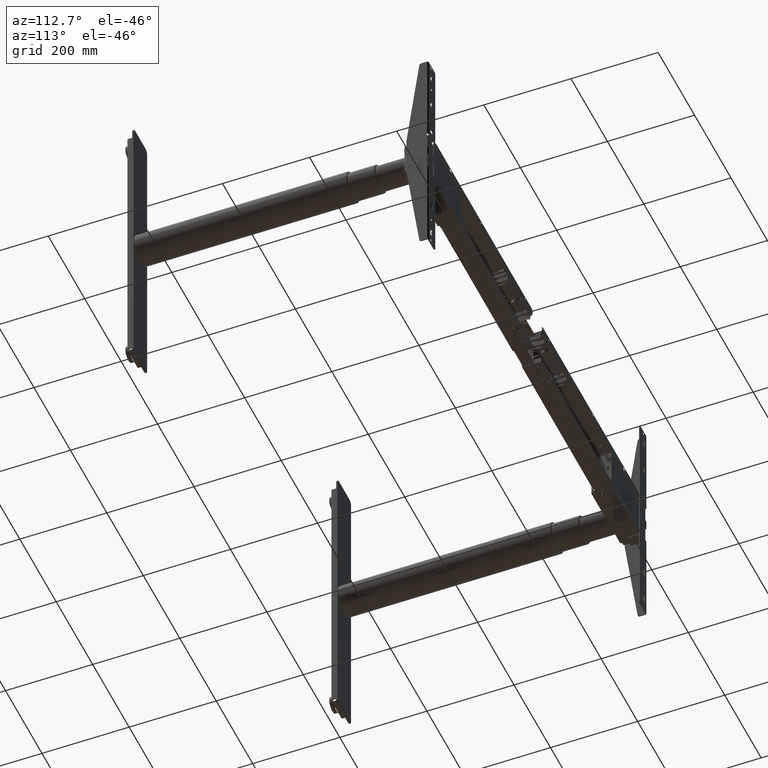
[diagram: clean part render]
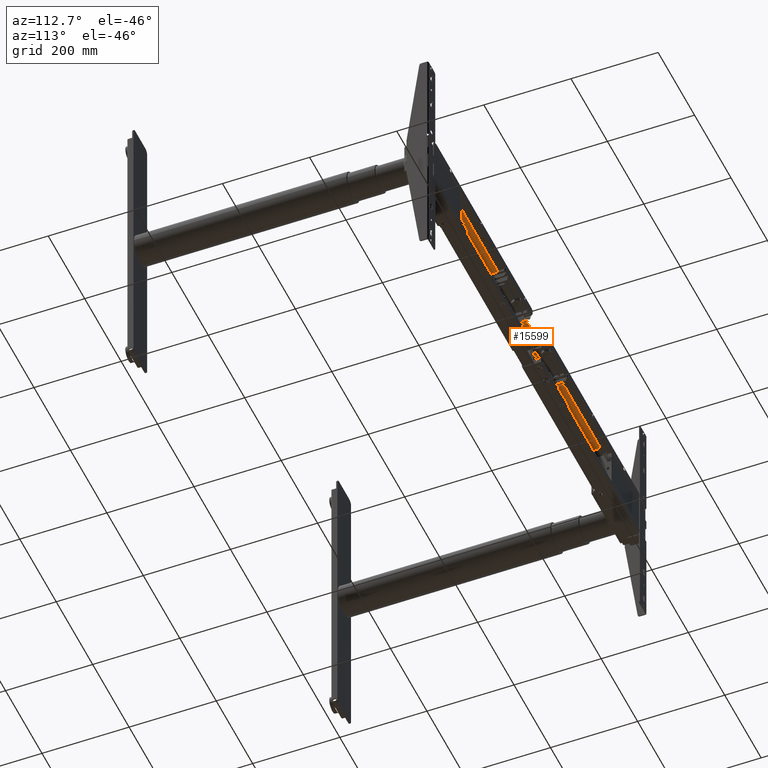
[diagram: same view with one face highlighted and labeled with its STEP entity id]
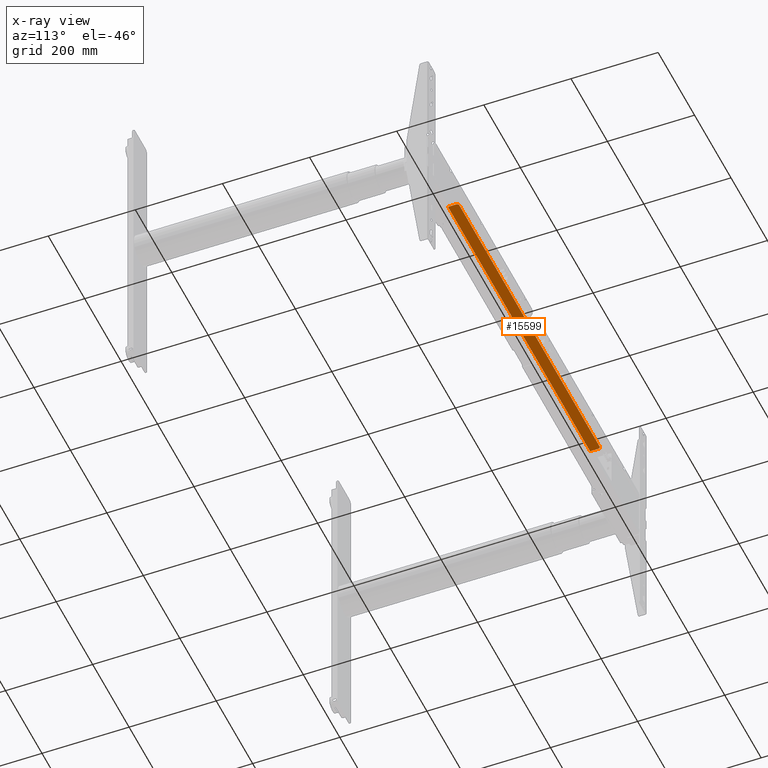
[diagram: x-ray of the same camera — body ghosted, the highlighted face saturated]
A machine part, auxiliary view. The second image highlights one B-rep face of the part: STEP entity #15599.
The next image is the same camera in x-ray: the body ghosted, the highlighted face saturated — about 0% of this face is hidden behind the body in this view.
In plain terms, the highlighted planar face has unit normal (0, -0, 1).
Its self-contained STEP definition (entity closure, byte-faithful):
#1324 = VECTOR ( 'NONE', #98720, 1000.000000000000000 ) ;
#1801 = VERTEX_POINT ( 'NONE', #37866 ) ;
#2918 = DIRECTION ( 'NONE',  ( 1.000000000000000000, 0.000000000000000000, 0.000000000000000000 ) ) ;
#4000 = EDGE_CURVE ( 'NONE', #1801, #88192, #62234, .T. ) ;
#4611 = VERTEX_POINT ( 'NONE', #77429 ) ;
#5190 = DIRECTION ( 'NONE',  ( 0.000000000000000000, 1.000000000000000000, 1.613696256722611405E-16 ) ) ;
#10341 = CARTESIAN_POINT ( 'NONE',  ( -385.0000000000024443, 681.4999999999989768, 43.40000000000009805 ) ) ;
#10861 = DIRECTION ( 'NONE',  ( -0.000000000000000000, 1.613696256722611405E-16, -1.000000000000000000 ) ) ;
#11042 = VECTOR ( 'NONE', #86457, 1000.000000000000000 ) ;
#13304 = DIRECTION ( 'NONE',  ( -0.000000000000000000, 1.613696256722611405E-16, -1.000000000000000000 ) ) ;
#15599 = ADVANCED_FACE ( 'NONE', ( #33854 ), #42173, .F. ) ;
#17238 = AXIS2_PLACEMENT_3D ( 'NONE', #10341, #10861, #95089 ) ;
#18812 = AXIS2_PLACEMENT_3D ( 'NONE', #51600, #77644, #77089 ) ;
#24336 = CIRCLE ( 'NONE', #17238, 5.000000000000004441 ) ;
#24847 = VERTEX_POINT ( 'NONE', #104393 ) ;
#27142 = VERTEX_POINT ( 'NONE', #59726 ) ;
#28314 = CIRCLE ( 'NONE', #69081, 5.000000000000004441 ) ;
#30393 = CARTESIAN_POINT ( 'NONE',  ( 384.9999999999975557, 686.4999999999989768, 43.40000000000009805 ) ) ;
#32411 = VECTOR ( 'NONE', #5190, 1000.000000000000000 ) ;
#33854 = FACE_OUTER_BOUND ( 'NONE', #98558, .T. ) ;
#35156 = VERTEX_POINT ( 'NONE', #30393 ) ;
#37866 = CARTESIAN_POINT ( 'NONE',  ( -390.0000000000024443, 662.4999999999989768, 43.40000000000009095 ) ) ;
#41548 = LINE ( 'NONE', #67117, #1324 ) ;
#42173 = PLANE ( 'NONE',  #18812 ) ;
#43777 = LINE ( 'NONE', #103063, #11042 ) ;
#49200 = CARTESIAN_POINT ( 'NONE',  ( -390.0000000000024443, 681.4999999999989768, 43.40000000000009805 ) ) ;
#51600 = CARTESIAN_POINT ( 'NONE',  ( 389.9999999999975557, 702.4999999999989768, 43.40000000000009805 ) ) ;
#53679 = EDGE_CURVE ( 'NONE', #24847, #35156, #88226, .T. ) ;
#55417 = VECTOR ( 'NONE', #2918, 1000.000000000000000 ) ;
#59726 = CARTESIAN_POINT ( 'NONE',  ( 389.9999999999975557, 681.4999999999989768, 43.40000000000009805 ) ) ;
#59835 = ORIENTED_EDGE ( 'NONE', *, *, #4000, .T. ) ;
#62234 = LINE ( 'NONE', #64446, #32411 ) ;
#64446 = CARTESIAN_POINT ( 'NONE',  ( -390.0000000000024443, 702.4999999999989768, 43.40000000000009805 ) ) ;
#67117 = CARTESIAN_POINT ( 'NONE',  ( 389.9999999999975557, 702.4999999999989768, 43.40000000000009805 ) ) ;
#69081 = AXIS2_PLACEMENT_3D ( 'NONE', #107456, #13304, #81968 ) ;
#70521 = CARTESIAN_POINT ( 'NONE',  ( 389.9999999999975557, 686.4999999999989768, 43.40000000000009805 ) ) ;
#75869 = EDGE_CURVE ( 'NONE', #4611, #1801, #43777, .T. ) ;
#77089 = DIRECTION ( 'NONE',  ( 0.000000000000000000, -1.000000000000000000, -1.613696256722611405E-16 ) ) ;
#77429 = CARTESIAN_POINT ( 'NONE',  ( 389.9999999999975557, 662.4999999999989768, 43.40000000000009095 ) ) ;
#77644 = DIRECTION ( 'NONE',  ( 0.000000000000000000, -1.613696256722611405E-16, 1.000000000000000000 ) ) ;
#81968 = DIRECTION ( 'NONE',  ( 0.000000000000000000, -1.000000000000000000, 0.000000000000000000 ) ) ;
#82401 = ORIENTED_EDGE ( 'NONE', *, *, #75869, .T. ) ;
#84871 = EDGE_CURVE ( 'NONE', #4611, #27142, #41548, .T. ) ;
#84950 = ORIENTED_EDGE ( 'NONE', *, *, #94036, .T. ) ;
#85543 = ORIENTED_EDGE ( 'NONE', *, *, #53679, .T. ) ;
#86457 = DIRECTION ( 'NONE',  ( -1.000000000000000000, -0.000000000000000000, -0.000000000000000000 ) ) ;
#86682 = ORIENTED_EDGE ( 'NONE', *, *, #97590, .T. ) ;
#87132 = ORIENTED_EDGE ( 'NONE', *, *, #84871, .F. ) ;
#88192 = VERTEX_POINT ( 'NONE', #49200 ) ;
#88226 = LINE ( 'NONE', #70521, #55417 ) ;
#94036 = EDGE_CURVE ( 'NONE', #88192, #24847, #24336, .T. ) ;
#95089 = DIRECTION ( 'NONE',  ( 0.000000000000000000, -1.000000000000000000, 0.000000000000000000 ) ) ;
#97590 = EDGE_CURVE ( 'NONE', #35156, #27142, #28314, .T. ) ;
#98558 = EDGE_LOOP ( 'NONE', ( #59835, #84950, #85543, #86682, #87132, #82401 ) ) ;
#98720 = DIRECTION ( 'NONE',  ( 0.000000000000000000, 1.000000000000000000, 1.613696256722611405E-16 ) ) ;
#103063 = CARTESIAN_POINT ( 'NONE',  ( 389.9999999999975557, 662.4999999999989768, 43.40000000000009095 ) ) ;
#104393 = CARTESIAN_POINT ( 'NONE',  ( -385.0000000000024443, 686.4999999999989768, 43.40000000000009805 ) ) ;
#107456 = CARTESIAN_POINT ( 'NONE',  ( 384.9999999999975557, 681.4999999999989768, 43.40000000000009805 ) ) ;